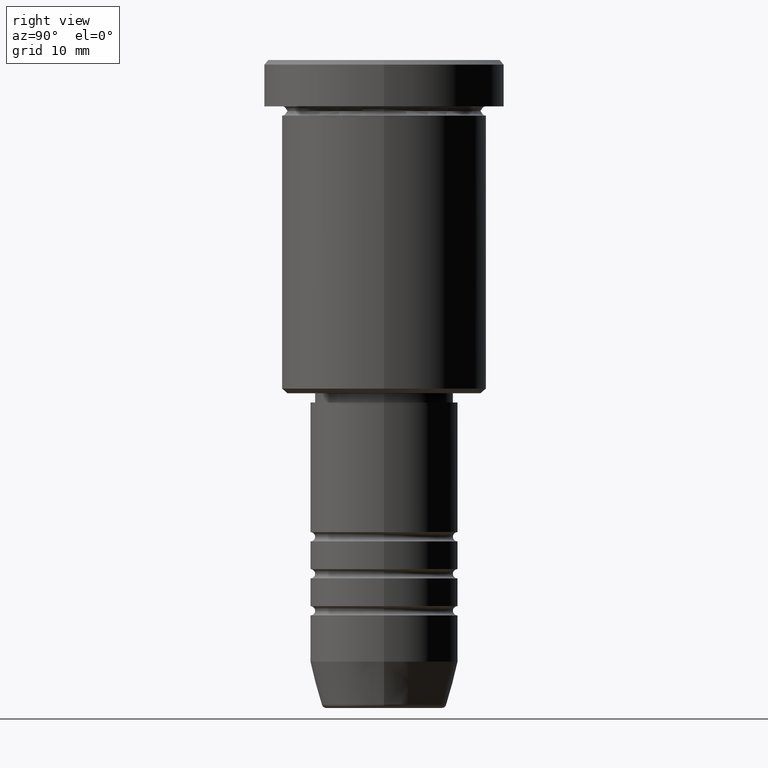
[diagram: clean part render]
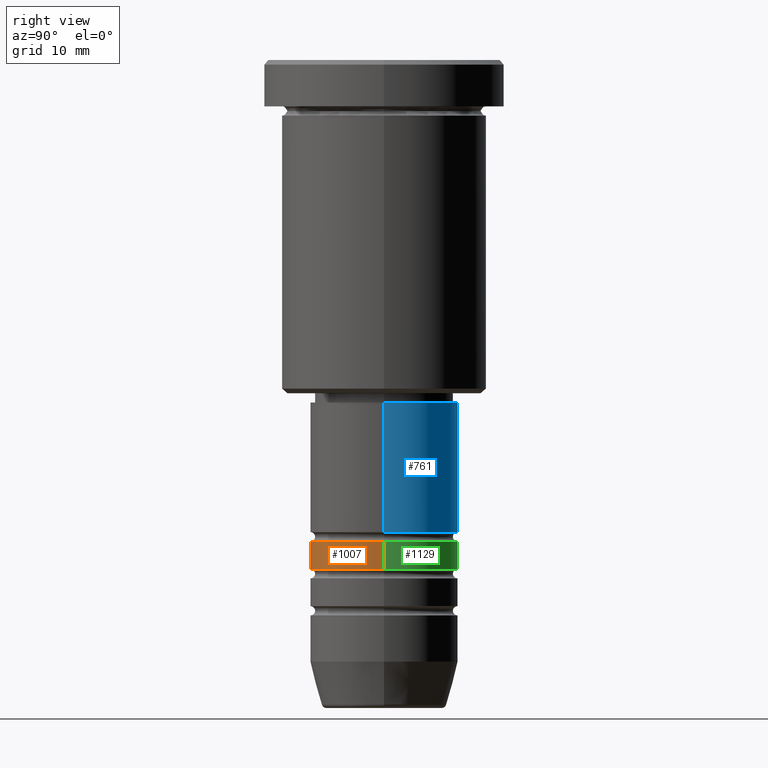
[diagram: same view with three faces highlighted in distinct colors, each labeled with its STEP entity id]
A machine part, right view with three faces highlighted in distinct colors.
Their STEP definitions:

[orange] entity #1007 — the highlighted cylindrical surface (partial cylindrical patch) has radius 8 mm, axis along (-0, -0, 1).
#1 = DIRECTION ( 'NONE',  ( -0.000000000000000000, -0.000000000000000000, 1.000000000000000000 ) ) ;
#11 = DIRECTION ( 'NONE',  ( 1.000000000000000000, 0.000000000000000000, 0.000000000000000000 ) ) ;
#17 = LINE ( 'NONE', #749, #1169 ) ;
#30 = LINE ( 'NONE', #476, #690 ) ;
#104 = CIRCLE ( 'NONE', #1094, 8.000000000000000000 ) ;
#163 = DIRECTION ( 'NONE',  ( -0.000000000000000000, -0.000000000000000000, 1.000000000000000000 ) ) ;
#212 = ORIENTED_EDGE ( 'NONE', *, *, #231, .F. ) ;
#223 = DIRECTION ( 'NONE',  ( 1.000000000000000000, 0.000000000000000000, 0.000000000000000000 ) ) ;
#227 = VERTEX_POINT ( 'NONE', #573 ) ;
#231 = EDGE_CURVE ( 'NONE', #395, #1066, #30, .T. ) ;
#254 = EDGE_CURVE ( 'NONE', #933, #227, #17, .T. ) ;
#355 = DIRECTION ( 'NONE',  ( 1.000000000000000000, 0.000000000000000000, 0.000000000000000000 ) ) ;
#375 = CARTESIAN_POINT ( 'NONE',  ( -8.000000000000000000, 9.797174393178827630E-16, -52.00000000000000000 ) ) ;
#395 = VERTEX_POINT ( 'NONE', #789 ) ;
#411 = FACE_OUTER_BOUND ( 'NONE', #994, .T. ) ;
#475 = DIRECTION ( 'NONE',  ( -0.000000000000000000, -0.000000000000000000, 1.000000000000000000 ) ) ;
#476 = CARTESIAN_POINT ( 'NONE',  ( -8.000000000000001776, 9.797174393178827630E-16, 0.000000000000000000 ) ) ;
#541 = CARTESIAN_POINT ( 'NONE',  ( 0.000000000000000000, 0.000000000000000000, -54.99999999999999289 ) ) ;
#573 = CARTESIAN_POINT ( 'NONE',  ( 8.000000000000000000, 0.000000000000000000, -52.00000000000000000 ) ) ;
#600 = ORIENTED_EDGE ( 'NONE', *, *, #702, .T. ) ;
#655 = CIRCLE ( 'NONE', #1074, 8.000000000000003553 ) ;
#690 = VECTOR ( 'NONE', #847, 1000.000000000000000 ) ;
#702 = EDGE_CURVE ( 'NONE', #395, #933, #655, .T. ) ;
#719 = EDGE_CURVE ( 'NONE', #1066, #227, #104, .T. ) ;
#749 = CARTESIAN_POINT ( 'NONE',  ( 8.000000000000001776, 0.000000000000000000, 0.000000000000000000 ) ) ;
#759 = ORIENTED_EDGE ( 'NONE', *, *, #719, .F. ) ;
#779 = CARTESIAN_POINT ( 'NONE',  ( 0.000000000000000000, 0.000000000000000000, 0.000000000000000000 ) ) ;
#789 = CARTESIAN_POINT ( 'NONE',  ( -8.000000000000003553, 9.797174393178829602E-16, -54.99999999999999289 ) ) ;
#790 = CYLINDRICAL_SURFACE ( 'NONE', #816, 8.000000000000001776 ) ;
#816 = AXIS2_PLACEMENT_3D ( 'NONE', #779, #163, #223 ) ;
#847 = DIRECTION ( 'NONE',  ( -0.000000000000000000, -0.000000000000000000, 1.000000000000000000 ) ) ;
#878 = ORIENTED_EDGE ( 'NONE', *, *, #254, .T. ) ;
#933 = VERTEX_POINT ( 'NONE', #1157 ) ;
#992 = CARTESIAN_POINT ( 'NONE',  ( 0.000000000000000000, 0.000000000000000000, -52.00000000000000000 ) ) ;
#994 = EDGE_LOOP ( 'NONE', ( #212, #600, #878, #759 ) ) ;
#1006 = DIRECTION ( 'NONE',  ( -0.000000000000000000, -0.000000000000000000, 1.000000000000000000 ) ) ;
#1007 = ADVANCED_FACE ( 'NONE', ( #411 ), #790, .T. ) ;
#1066 = VERTEX_POINT ( 'NONE', #375 ) ;
#1074 = AXIS2_PLACEMENT_3D ( 'NONE', #541, #1006, #11 ) ;
#1094 = AXIS2_PLACEMENT_3D ( 'NONE', #992, #1, #355 ) ;
#1157 = CARTESIAN_POINT ( 'NONE',  ( 8.000000000000003553, 0.000000000000000000, -54.99999999999999289 ) ) ;
#1169 = VECTOR ( 'NONE', #475, 1000.000000000000000 ) ;

[blue] entity #761 — the highlighted cylindrical surface (partial cylindrical patch) has radius 8 mm, axis along (-0, -0, 1).
#10 = CARTESIAN_POINT ( 'NONE',  ( 0.000000000000000000, 0.000000000000000000, -51.00000000000000000 ) ) ;
#12 = EDGE_CURVE ( 'NONE', #242, #343, #868, .T. ) ;
#20 = DIRECTION ( 'NONE',  ( 1.000000000000000000, 0.000000000000000000, 0.000000000000000000 ) ) ;
#73 = CARTESIAN_POINT ( 'NONE',  ( 8.000000000000000000, 0.000000000000000000, -37.00000000000000711 ) ) ;
#169 = LINE ( 'NONE', #350, #1037 ) ;
#201 = ORIENTED_EDGE ( 'NONE', *, *, #525, .F. ) ;
#242 = VERTEX_POINT ( 'NONE', #1015 ) ;
#281 = DIRECTION ( 'NONE',  ( -0.000000000000000000, -0.000000000000000000, 1.000000000000000000 ) ) ;
#283 = VERTEX_POINT ( 'NONE', #972 ) ;
#326 = AXIS2_PLACEMENT_3D ( 'NONE', #852, #397, #20 ) ;
#343 = VERTEX_POINT ( 'NONE', #881 ) ;
#350 = CARTESIAN_POINT ( 'NONE',  ( 8.000000000000000000, 0.000000000000000000, 0.000000000000000000 ) ) ;
#397 = DIRECTION ( 'NONE',  ( -0.000000000000000000, -0.000000000000000000, 1.000000000000000000 ) ) ;
#406 = CIRCLE ( 'NONE', #326, 8.000000000000000000 ) ;
#464 = CIRCLE ( 'NONE', #716, 8.000000000000000000 ) ;
#498 = DIRECTION ( 'NONE',  ( -0.000000000000000000, -0.000000000000000000, 1.000000000000000000 ) ) ;
#525 = EDGE_CURVE ( 'NONE', #283, #591, #169, .T. ) ;
#580 = AXIS2_PLACEMENT_3D ( 'NONE', #1083, #281, #1079 ) ;
#591 = VERTEX_POINT ( 'NONE', #73 ) ;
#610 = DIRECTION ( 'NONE',  ( -0.000000000000000000, -0.000000000000000000, 1.000000000000000000 ) ) ;
#623 = DIRECTION ( 'NONE',  ( -0.000000000000000000, -0.000000000000000000, 1.000000000000000000 ) ) ;
#634 = VECTOR ( 'NONE', #498, 1000.000000000000000 ) ;
#649 = CYLINDRICAL_SURFACE ( 'NONE', #580, 8.000000000000000000 ) ;
#703 = CARTESIAN_POINT ( 'NONE',  ( -8.000000000000000000, 9.797174393178825657E-16, 0.000000000000000000 ) ) ;
#716 = AXIS2_PLACEMENT_3D ( 'NONE', #10, #623, #1005 ) ;
#735 = FACE_OUTER_BOUND ( 'NONE', #812, .T. ) ;
#761 = ADVANCED_FACE ( 'NONE', ( #735 ), #649, .T. ) ;
#812 = EDGE_LOOP ( 'NONE', ( #821, #1165, #1010, #201 ) ) ;
#821 = ORIENTED_EDGE ( 'NONE', *, *, #1089, .T. ) ;
#852 = CARTESIAN_POINT ( 'NONE',  ( 0.000000000000000000, 0.000000000000000000, -37.00000000000000711 ) ) ;
#868 = LINE ( 'NONE', #703, #634 ) ;
#881 = CARTESIAN_POINT ( 'NONE',  ( -8.000000000000000000, 9.797174393178825657E-16, -37.00000000000000711 ) ) ;
#918 = EDGE_CURVE ( 'NONE', #591, #343, #406, .T. ) ;
#972 = CARTESIAN_POINT ( 'NONE',  ( 8.000000000000000000, 0.000000000000000000, -51.00000000000000000 ) ) ;
#1005 = DIRECTION ( 'NONE',  ( 1.000000000000000000, 0.000000000000000000, 0.000000000000000000 ) ) ;
#1010 = ORIENTED_EDGE ( 'NONE', *, *, #918, .F. ) ;
#1015 = CARTESIAN_POINT ( 'NONE',  ( -8.000000000000000000, 9.797174393178825657E-16, -51.00000000000000000 ) ) ;
#1037 = VECTOR ( 'NONE', #610, 1000.000000000000000 ) ;
#1079 = DIRECTION ( 'NONE',  ( 1.000000000000000000, 0.000000000000000000, 0.000000000000000000 ) ) ;
#1083 = CARTESIAN_POINT ( 'NONE',  ( 0.000000000000000000, 0.000000000000000000, 0.000000000000000000 ) ) ;
#1089 = EDGE_CURVE ( 'NONE', #283, #242, #464, .T. ) ;
#1165 = ORIENTED_EDGE ( 'NONE', *, *, #12, .T. ) ;

[green] entity #1129 — the highlighted cylindrical surface (partial cylindrical patch) has radius 8 mm, axis along (-0, -0, 1).
#4 = CARTESIAN_POINT ( 'NONE',  ( 0.000000000000000000, 0.000000000000000000, 0.000000000000000000 ) ) ;
#17 = LINE ( 'NONE', #749, #1169 ) ;
#30 = LINE ( 'NONE', #476, #690 ) ;
#43 = AXIS2_PLACEMENT_3D ( 'NONE', #256, #359, #447 ) ;
#72 = FACE_OUTER_BOUND ( 'NONE', #171, .T. ) ;
#127 = CARTESIAN_POINT ( 'NONE',  ( 0.000000000000000000, 0.000000000000000000, -52.00000000000000000 ) ) ;
#171 = EDGE_LOOP ( 'NONE', ( #436, #838, #1062, #295 ) ) ;
#172 = DIRECTION ( 'NONE',  ( -0.000000000000000000, -0.000000000000000000, 1.000000000000000000 ) ) ;
#178 = CIRCLE ( 'NONE', #43, 8.000000000000003553 ) ;
#227 = VERTEX_POINT ( 'NONE', #573 ) ;
#231 = EDGE_CURVE ( 'NONE', #395, #1066, #30, .T. ) ;
#254 = EDGE_CURVE ( 'NONE', #933, #227, #17, .T. ) ;
#256 = CARTESIAN_POINT ( 'NONE',  ( 0.000000000000000000, 0.000000000000000000, -54.99999999999999289 ) ) ;
#295 = ORIENTED_EDGE ( 'NONE', *, *, #254, .F. ) ;
#359 = DIRECTION ( 'NONE',  ( -0.000000000000000000, -0.000000000000000000, 1.000000000000000000 ) ) ;
#363 = DIRECTION ( 'NONE',  ( 1.000000000000000000, 0.000000000000000000, 0.000000000000000000 ) ) ;
#375 = CARTESIAN_POINT ( 'NONE',  ( -8.000000000000000000, 9.797174393178827630E-16, -52.00000000000000000 ) ) ;
#395 = VERTEX_POINT ( 'NONE', #789 ) ;
#436 = ORIENTED_EDGE ( 'NONE', *, *, #1053, .T. ) ;
#447 = DIRECTION ( 'NONE',  ( 1.000000000000000000, 0.000000000000000000, 0.000000000000000000 ) ) ;
#475 = DIRECTION ( 'NONE',  ( -0.000000000000000000, -0.000000000000000000, 1.000000000000000000 ) ) ;
#476 = CARTESIAN_POINT ( 'NONE',  ( -8.000000000000001776, 9.797174393178827630E-16, 0.000000000000000000 ) ) ;
#497 = CIRCLE ( 'NONE', #561, 8.000000000000000000 ) ;
#561 = AXIS2_PLACEMENT_3D ( 'NONE', #127, #1050, #965 ) ;
#573 = CARTESIAN_POINT ( 'NONE',  ( 8.000000000000000000, 0.000000000000000000, -52.00000000000000000 ) ) ;
#624 = EDGE_CURVE ( 'NONE', #227, #1066, #497, .T. ) ;
#690 = VECTOR ( 'NONE', #847, 1000.000000000000000 ) ;
#749 = CARTESIAN_POINT ( 'NONE',  ( 8.000000000000001776, 0.000000000000000000, 0.000000000000000000 ) ) ;
#789 = CARTESIAN_POINT ( 'NONE',  ( -8.000000000000003553, 9.797174393178829602E-16, -54.99999999999999289 ) ) ;
#838 = ORIENTED_EDGE ( 'NONE', *, *, #231, .T. ) ;
#847 = DIRECTION ( 'NONE',  ( -0.000000000000000000, -0.000000000000000000, 1.000000000000000000 ) ) ;
#933 = VERTEX_POINT ( 'NONE', #1157 ) ;
#965 = DIRECTION ( 'NONE',  ( 1.000000000000000000, 0.000000000000000000, 0.000000000000000000 ) ) ;
#1050 = DIRECTION ( 'NONE',  ( -0.000000000000000000, -0.000000000000000000, 1.000000000000000000 ) ) ;
#1053 = EDGE_CURVE ( 'NONE', #933, #395, #178, .T. ) ;
#1062 = ORIENTED_EDGE ( 'NONE', *, *, #624, .F. ) ;
#1066 = VERTEX_POINT ( 'NONE', #375 ) ;
#1129 = ADVANCED_FACE ( 'NONE', ( #72 ), #1177, .T. ) ;
#1153 = AXIS2_PLACEMENT_3D ( 'NONE', #4, #172, #363 ) ;
#1157 = CARTESIAN_POINT ( 'NONE',  ( 8.000000000000003553, 0.000000000000000000, -54.99999999999999289 ) ) ;
#1169 = VECTOR ( 'NONE', #475, 1000.000000000000000 ) ;
#1177 = CYLINDRICAL_SURFACE ( 'NONE', #1153, 8.000000000000001776 ) ;